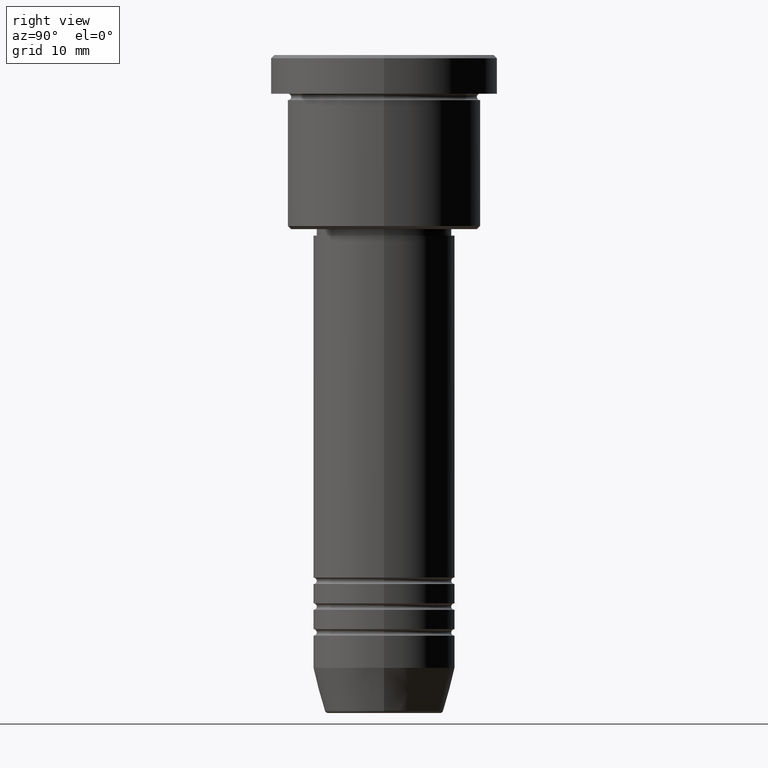
[diagram: clean part render]
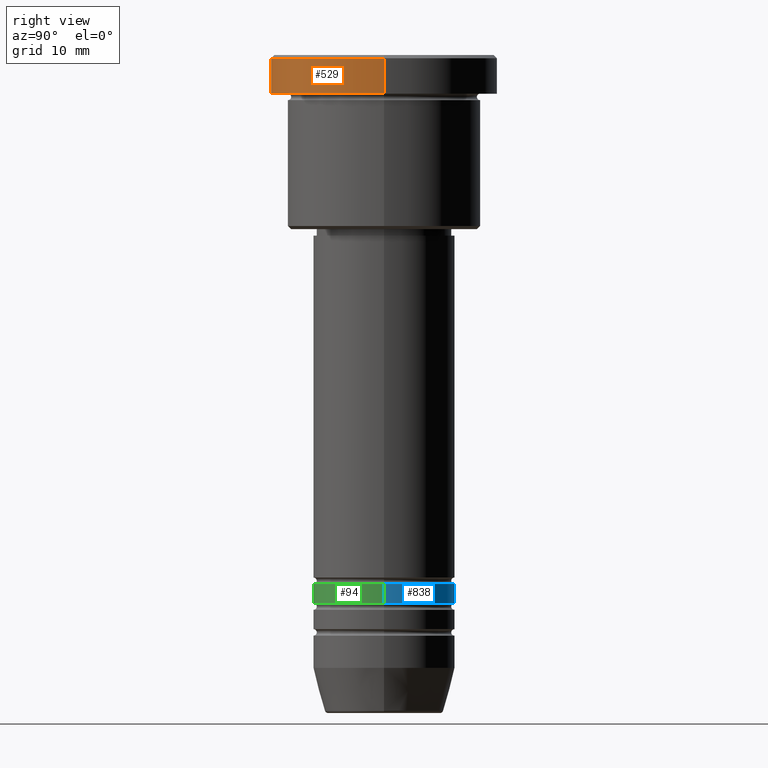
[diagram: same view with three faces highlighted in distinct colors, each labeled with its STEP entity id]
A machine part, right view with three faces highlighted in distinct colors.
Their STEP definitions:

[orange] entity #529 — the highlighted cylindrical surface (partial cylindrical patch) has radius 17.5 mm, axis along (-0, -0, 1).
#16 = EDGE_LOOP ( 'NONE', ( #225, #676, #315, #422 ) ) ;
#137 = VERTEX_POINT ( 'NONE', #670 ) ;
#161 = DIRECTION ( 'NONE',  ( 1.000000000000000000, 0.000000000000000000, 0.000000000000000000 ) ) ;
#176 = CARTESIAN_POINT ( 'NONE',  ( 17.50000000000000000, 0.000000000000000000, -0.5000000000000003331 ) ) ;
#225 = ORIENTED_EDGE ( 'NONE', *, *, #698, .F. ) ;
#274 = CARTESIAN_POINT ( 'NONE',  ( 17.50000000000000000, 0.000000000000000000, -5.999999999999995559 ) ) ;
#278 = LINE ( 'NONE', #919, #817 ) ;
#279 = AXIS2_PLACEMENT_3D ( 'NONE', #601, #1052, #322 ) ;
#315 = ORIENTED_EDGE ( 'NONE', *, *, #1124, .T. ) ;
#319 = EDGE_CURVE ( 'NONE', #714, #137, #1136, .T. ) ;
#322 = DIRECTION ( 'NONE',  ( 1.000000000000000000, 0.000000000000000000, 0.000000000000000000 ) ) ;
#403 = CARTESIAN_POINT ( 'NONE',  ( 0.000000000000000000, 0.000000000000000000, -0.5000000000000003331 ) ) ;
#413 = AXIS2_PLACEMENT_3D ( 'NONE', #403, #1134, #857 ) ;
#422 = ORIENTED_EDGE ( 'NONE', *, *, #319, .T. ) ;
#500 = FACE_OUTER_BOUND ( 'NONE', #16, .T. ) ;
#529 = ADVANCED_FACE ( 'NONE', ( #500 ), #962, .T. ) ;
#594 = EDGE_CURVE ( 'NONE', #628, #769, #850, .T. ) ;
#595 = DIRECTION ( 'NONE',  ( -0.000000000000000000, -0.000000000000000000, 1.000000000000000000 ) ) ;
#601 = CARTESIAN_POINT ( 'NONE',  ( 0.000000000000000000, 0.000000000000000000, 0.000000000000000000 ) ) ;
#608 = CARTESIAN_POINT ( 'NONE',  ( -17.50000000000000000, 2.143131898507868248E-15, -5.999999999999995559 ) ) ;
#628 = VERTEX_POINT ( 'NONE', #608 ) ;
#670 = CARTESIAN_POINT ( 'NONE',  ( -17.50000000000000000, 2.143131898507868248E-15, -0.5000000000000003331 ) ) ;
#676 = ORIENTED_EDGE ( 'NONE', *, *, #594, .T. ) ;
#698 = EDGE_CURVE ( 'NONE', #628, #137, #802, .T. ) ;
#708 = CARTESIAN_POINT ( 'NONE',  ( 0.000000000000000000, 0.000000000000000000, -5.999999999999995559 ) ) ;
#714 = VERTEX_POINT ( 'NONE', #176 ) ;
#769 = VERTEX_POINT ( 'NONE', #274 ) ;
#802 = LINE ( 'NONE', #912, #908 ) ;
#817 = VECTOR ( 'NONE', #1119, 1000.000000000000000 ) ;
#850 = CIRCLE ( 'NONE', #925, 17.50000000000000000 ) ;
#857 = DIRECTION ( 'NONE',  ( 1.000000000000000000, 0.000000000000000000, 0.000000000000000000 ) ) ;
#908 = VECTOR ( 'NONE', #983, 1000.000000000000000 ) ;
#912 = CARTESIAN_POINT ( 'NONE',  ( -17.50000000000000000, 2.143131898507868248E-15, 0.000000000000000000 ) ) ;
#919 = CARTESIAN_POINT ( 'NONE',  ( 17.50000000000000000, 0.000000000000000000, 0.000000000000000000 ) ) ;
#925 = AXIS2_PLACEMENT_3D ( 'NONE', #708, #595, #161 ) ;
#962 = CYLINDRICAL_SURFACE ( 'NONE', #279, 17.50000000000000000 ) ;
#983 = DIRECTION ( 'NONE',  ( -0.000000000000000000, -0.000000000000000000, 1.000000000000000000 ) ) ;
#1052 = DIRECTION ( 'NONE',  ( -0.000000000000000000, -0.000000000000000000, 1.000000000000000000 ) ) ;
#1119 = DIRECTION ( 'NONE',  ( -0.000000000000000000, -0.000000000000000000, 1.000000000000000000 ) ) ;
#1124 = EDGE_CURVE ( 'NONE', #769, #714, #278, .T. ) ;
#1134 = DIRECTION ( 'NONE',  ( 0.000000000000000000, 0.000000000000000000, -1.000000000000000000 ) ) ;
#1136 = CIRCLE ( 'NONE', #413, 17.50000000000000000 ) ;

[blue] entity #838 — the highlighted cylindrical surface (partial cylindrical patch) has radius 11 mm, axis along (-0, -0, 1).
#6 = CARTESIAN_POINT ( 'NONE',  ( 11.00000000000000000, 0.000000000000000000, -81.99999999999988631 ) ) ;
#27 = EDGE_CURVE ( 'NONE', #883, #439, #449, .T. ) ;
#69 = VECTOR ( 'NONE', #128, 1000.000000000000000 ) ;
#85 = ORIENTED_EDGE ( 'NONE', *, *, #507, .F. ) ;
#102 = FACE_OUTER_BOUND ( 'NONE', #387, .T. ) ;
#121 = DIRECTION ( 'NONE',  ( 1.000000000000000000, 0.000000000000000000, 0.000000000000000000 ) ) ;
#128 = DIRECTION ( 'NONE',  ( -0.000000000000000000, -0.000000000000000000, 1.000000000000000000 ) ) ;
#192 = DIRECTION ( 'NONE',  ( 1.000000000000000000, 0.000000000000000000, 0.000000000000000000 ) ) ;
#202 = EDGE_CURVE ( 'NONE', #913, #623, #260, .T. ) ;
#215 = CARTESIAN_POINT ( 'NONE',  ( -11.00000000000000178, 1.347111479062088602E-15, 0.000000000000000000 ) ) ;
#260 = CIRCLE ( 'NONE', #549, 11.00000000000000355 ) ;
#263 = CARTESIAN_POINT ( 'NONE',  ( 0.000000000000000000, 0.000000000000000000, -81.99999999999988631 ) ) ;
#269 = DIRECTION ( 'NONE',  ( -0.000000000000000000, -0.000000000000000000, 1.000000000000000000 ) ) ;
#281 = AXIS2_PLACEMENT_3D ( 'NONE', #302, #391, #192 ) ;
#287 = CARTESIAN_POINT ( 'NONE',  ( 11.00000000000000178, 0.000000000000000000, 0.000000000000000000 ) ) ;
#302 = CARTESIAN_POINT ( 'NONE',  ( 0.000000000000000000, 0.000000000000000000, 0.000000000000000000 ) ) ;
#312 = EDGE_CURVE ( 'NONE', #623, #439, #1131, .T. ) ;
#375 = ORIENTED_EDGE ( 'NONE', *, *, #312, .T. ) ;
#387 = EDGE_LOOP ( 'NONE', ( #556, #375, #618, #85 ) ) ;
#391 = DIRECTION ( 'NONE',  ( -0.000000000000000000, -0.000000000000000000, 1.000000000000000000 ) ) ;
#439 = VERTEX_POINT ( 'NONE', #918 ) ;
#449 = CIRCLE ( 'NONE', #944, 11.00000000000000000 ) ;
#507 = EDGE_CURVE ( 'NONE', #913, #883, #557, .T. ) ;
#510 = CARTESIAN_POINT ( 'NONE',  ( -11.00000000000000355, 1.347111479062088996E-15, -84.99999999999991473 ) ) ;
#549 = AXIS2_PLACEMENT_3D ( 'NONE', #1085, #269, #121 ) ;
#556 = ORIENTED_EDGE ( 'NONE', *, *, #202, .T. ) ;
#557 = LINE ( 'NONE', #287, #989 ) ;
#567 = CARTESIAN_POINT ( 'NONE',  ( 11.00000000000000355, 0.000000000000000000, -84.99999999999991473 ) ) ;
#618 = ORIENTED_EDGE ( 'NONE', *, *, #27, .F. ) ;
#623 = VERTEX_POINT ( 'NONE', #510 ) ;
#654 = DIRECTION ( 'NONE',  ( -0.000000000000000000, -0.000000000000000000, 1.000000000000000000 ) ) ;
#710 = DIRECTION ( 'NONE',  ( 1.000000000000000000, 0.000000000000000000, 0.000000000000000000 ) ) ;
#825 = CYLINDRICAL_SURFACE ( 'NONE', #281, 11.00000000000000178 ) ;
#838 = ADVANCED_FACE ( 'NONE', ( #102 ), #825, .T. ) ;
#883 = VERTEX_POINT ( 'NONE', #6 ) ;
#913 = VERTEX_POINT ( 'NONE', #567 ) ;
#918 = CARTESIAN_POINT ( 'NONE',  ( -11.00000000000000000, 1.347111479062088602E-15, -81.99999999999988631 ) ) ;
#944 = AXIS2_PLACEMENT_3D ( 'NONE', #263, #1164, #710 ) ;
#989 = VECTOR ( 'NONE', #654, 1000.000000000000000 ) ;
#1085 = CARTESIAN_POINT ( 'NONE',  ( 0.000000000000000000, 0.000000000000000000, -84.99999999999991473 ) ) ;
#1131 = LINE ( 'NONE', #215, #69 ) ;
#1164 = DIRECTION ( 'NONE',  ( -0.000000000000000000, -0.000000000000000000, 1.000000000000000000 ) ) ;

[green] entity #94 — the highlighted cylindrical surface (partial cylindrical patch) has radius 11 mm, axis along (-0, -0, 1).
#6 = CARTESIAN_POINT ( 'NONE',  ( 11.00000000000000000, 0.000000000000000000, -81.99999999999988631 ) ) ;
#32 = EDGE_LOOP ( 'NONE', ( #1102, #958, #131, #504 ) ) ;
#69 = VECTOR ( 'NONE', #128, 1000.000000000000000 ) ;
#94 = ADVANCED_FACE ( 'NONE', ( #746 ), #307, .T. ) ;
#128 = DIRECTION ( 'NONE',  ( -0.000000000000000000, -0.000000000000000000, 1.000000000000000000 ) ) ;
#131 = ORIENTED_EDGE ( 'NONE', *, *, #507, .T. ) ;
#214 = CARTESIAN_POINT ( 'NONE',  ( 0.000000000000000000, 0.000000000000000000, -84.99999999999991473 ) ) ;
#215 = CARTESIAN_POINT ( 'NONE',  ( -11.00000000000000178, 1.347111479062088602E-15, 0.000000000000000000 ) ) ;
#242 = AXIS2_PLACEMENT_3D ( 'NONE', #214, #922, #1013 ) ;
#287 = CARTESIAN_POINT ( 'NONE',  ( 11.00000000000000178, 0.000000000000000000, 0.000000000000000000 ) ) ;
#307 = CYLINDRICAL_SURFACE ( 'NONE', #352, 11.00000000000000178 ) ;
#312 = EDGE_CURVE ( 'NONE', #623, #439, #1131, .T. ) ;
#352 = AXIS2_PLACEMENT_3D ( 'NONE', #1014, #661, #725 ) ;
#392 = CIRCLE ( 'NONE', #242, 11.00000000000000355 ) ;
#418 = EDGE_CURVE ( 'NONE', #623, #913, #392, .T. ) ;
#439 = VERTEX_POINT ( 'NONE', #918 ) ;
#462 = CARTESIAN_POINT ( 'NONE',  ( 0.000000000000000000, 0.000000000000000000, -81.99999999999988631 ) ) ;
#504 = ORIENTED_EDGE ( 'NONE', *, *, #1099, .F. ) ;
#507 = EDGE_CURVE ( 'NONE', #913, #883, #557, .T. ) ;
#510 = CARTESIAN_POINT ( 'NONE',  ( -11.00000000000000355, 1.347111479062088996E-15, -84.99999999999991473 ) ) ;
#557 = LINE ( 'NONE', #287, #989 ) ;
#567 = CARTESIAN_POINT ( 'NONE',  ( 11.00000000000000355, 0.000000000000000000, -84.99999999999991473 ) ) ;
#623 = VERTEX_POINT ( 'NONE', #510 ) ;
#632 = CIRCLE ( 'NONE', #800, 11.00000000000000000 ) ;
#654 = DIRECTION ( 'NONE',  ( -0.000000000000000000, -0.000000000000000000, 1.000000000000000000 ) ) ;
#661 = DIRECTION ( 'NONE',  ( -0.000000000000000000, -0.000000000000000000, 1.000000000000000000 ) ) ;
#725 = DIRECTION ( 'NONE',  ( 1.000000000000000000, 0.000000000000000000, 0.000000000000000000 ) ) ;
#729 = DIRECTION ( 'NONE',  ( -0.000000000000000000, -0.000000000000000000, 1.000000000000000000 ) ) ;
#742 = DIRECTION ( 'NONE',  ( 1.000000000000000000, 0.000000000000000000, 0.000000000000000000 ) ) ;
#746 = FACE_OUTER_BOUND ( 'NONE', #32, .T. ) ;
#800 = AXIS2_PLACEMENT_3D ( 'NONE', #462, #729, #742 ) ;
#883 = VERTEX_POINT ( 'NONE', #6 ) ;
#913 = VERTEX_POINT ( 'NONE', #567 ) ;
#918 = CARTESIAN_POINT ( 'NONE',  ( -11.00000000000000000, 1.347111479062088602E-15, -81.99999999999988631 ) ) ;
#922 = DIRECTION ( 'NONE',  ( -0.000000000000000000, -0.000000000000000000, 1.000000000000000000 ) ) ;
#958 = ORIENTED_EDGE ( 'NONE', *, *, #418, .T. ) ;
#989 = VECTOR ( 'NONE', #654, 1000.000000000000000 ) ;
#1013 = DIRECTION ( 'NONE',  ( 1.000000000000000000, 0.000000000000000000, 0.000000000000000000 ) ) ;
#1014 = CARTESIAN_POINT ( 'NONE',  ( 0.000000000000000000, 0.000000000000000000, 0.000000000000000000 ) ) ;
#1099 = EDGE_CURVE ( 'NONE', #439, #883, #632, .T. ) ;
#1102 = ORIENTED_EDGE ( 'NONE', *, *, #312, .F. ) ;
#1131 = LINE ( 'NONE', #215, #69 ) ;